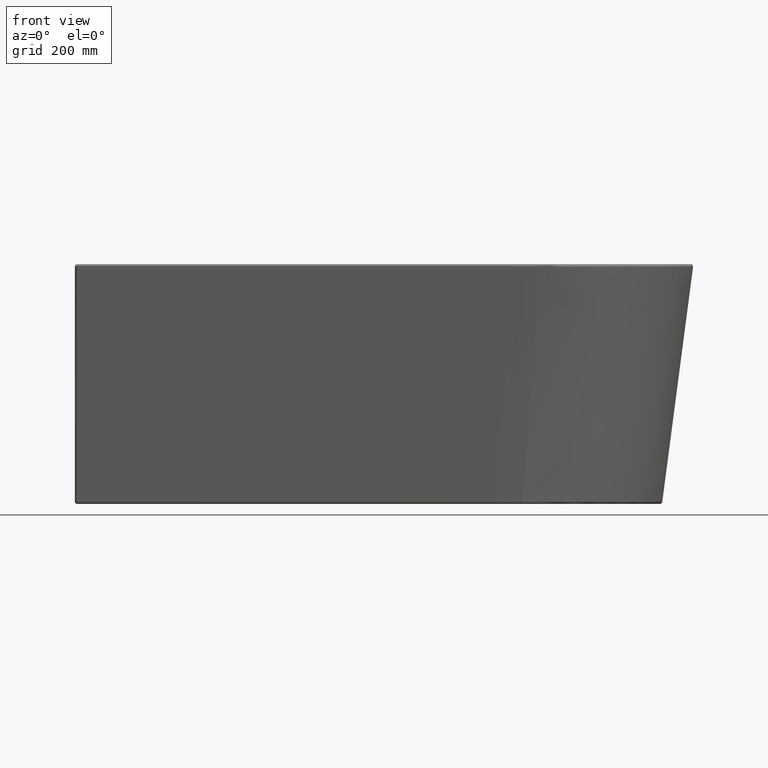
[diagram: clean part render]
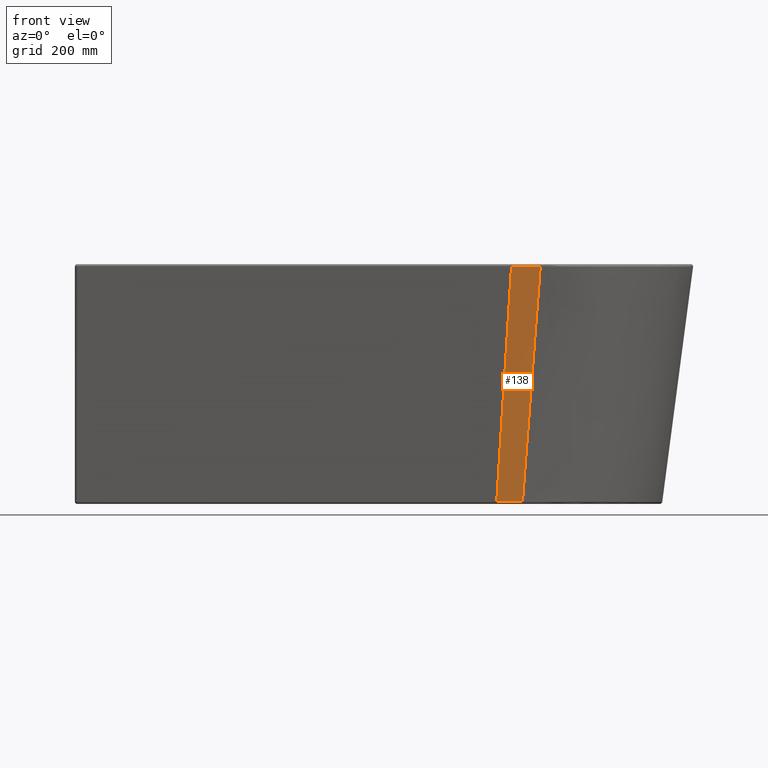
[diagram: same view with one face highlighted and labeled with its STEP entity id]
A machine part, front view. The second image highlights one B-rep face of the part: STEP entity #138.
In plain terms, the highlighted face is a freeform B-spline surface patch.
Its self-contained STEP definition (entity closure, byte-faithful):
#138=ADVANCED_FACE('',(#237),#2846,.T.);
#237=FACE_OUTER_BOUND('',#336,.T.);
#336=EDGE_LOOP('',(#677,#678,#679,#680));
#677=ORIENTED_EDGE('',*,*,#2498,.F.);
#678=ORIENTED_EDGE('',*,*,#2502,.T.);
#679=ORIENTED_EDGE('',*,*,#2488,.F.);
#680=ORIENTED_EDGE('',*,*,#2503,.T.);
#1144=B_SPLINE_CURVE_WITH_KNOTS('',1,(#8846,#8847),.UNSPECIFIED.,.F.,.F.,
(2,2),(6.38976498192872,588.739004689868),.UNSPECIFIED.);
#1154=B_SPLINE_CURVE_WITH_KNOTS('',1,(#8915,#8916),.UNSPECIFIED.,.F.,.F.,
(2,2),(-588.376841681359,-6.01270009495284),.UNSPECIFIED.);
#1158=B_SPLINE_CURVE_WITH_KNOTS('',1,(#8935,#8936),.UNSPECIFIED.,.F.,.F.,
(2,2),(-588.376841681359,-6.01270009495284),.UNSPECIFIED.);
#1159=B_SPLINE_CURVE_WITH_KNOTS('',3,(#8941,#8942,#8943,#8944),
 .UNSPECIFIED.,.F.,.F.,(4,4),(-61.1134140227743,0.340165854172579),
 .UNSPECIFIED.);
#1160=B_SPLINE_CURVE_WITH_KNOTS('',1,(#8945,#8946),.UNSPECIFIED.,.F.,.F.,
(2,2),(6.38976498192872,588.739004689868),.UNSPECIFIED.);
#1161=B_SPLINE_CURVE_WITH_KNOTS('',3,(#8951,#8952,#8953,#8954),
 .UNSPECIFIED.,.F.,.F.,(4,4),(-69.1122228830787,0.368828350929946),
 .UNSPECIFIED.);
#1219=B_SPLINE_CURVE_WITH_KNOTS('',1,(#9192,#9193),.UNSPECIFIED.,.F.,.F.,
(2,2),(-61.1134140227743,0.340165854172579),.UNSPECIFIED.);
#1223=B_SPLINE_CURVE_WITH_KNOTS('',1,(#9203,#9204),.UNSPECIFIED.,.F.,.F.,
(2,2),(-69.1122228830787,0.368828350929946),.UNSPECIFIED.);
#1572=PCURVE('',#2842,#1991);
#1582=PCURVE('',#2845,#2001);
#1586=PCURVE('',#2846,#2005);
#1587=PCURVE('',#2846,#2006);
#1588=PCURVE('',#2846,#2007);
#1589=PCURVE('',#2846,#2008);
#1638=PCURVE('',#2859,#2057);
#1642=PCURVE('',#2860,#2061);
#1991=DEFINITIONAL_REPRESENTATION('',(#1144),#9406);
#2001=DEFINITIONAL_REPRESENTATION('',(#1154),#9406);
#2005=DEFINITIONAL_REPRESENTATION('',(#1158),#9406);
#2006=DEFINITIONAL_REPRESENTATION('',(#1159),#9406);
#2007=DEFINITIONAL_REPRESENTATION('',(#1160),#9406);
#2008=DEFINITIONAL_REPRESENTATION('',(#1161),#9406);
#2057=DEFINITIONAL_REPRESENTATION('',(#1219),#9406);
#2061=DEFINITIONAL_REPRESENTATION('',(#1223),#9406);
#2277=SURFACE_CURVE('',#2643,(#1572,#1588),.PCURVE_S1.);
#2287=SURFACE_CURVE('',#2653,(#1582,#1586),.PCURVE_S1.);
#2291=SURFACE_CURVE('',#2657,(#1587,#1638),.PCURVE_S1.);
#2292=SURFACE_CURVE('',#2658,(#1589,#1642),.PCURVE_S1.);
#2488=EDGE_CURVE('',#2776,#2775,#2277,.T.);
#2498=EDGE_CURVE('',#2788,#2791,#2287,.T.);
#2502=EDGE_CURVE('',#2788,#2775,#2291,.T.);
#2503=EDGE_CURVE('',#2776,#2791,#2292,.T.);
#2643=(
BOUNDED_CURVE()
B_SPLINE_CURVE(3,(#8842,#8843,#8844,#8845),.UNSPECIFIED.,.F.,.F.)
B_SPLINE_CURVE_WITH_KNOTS((4,4),(6.38976498192872,588.739004689868),
 .UNSPECIFIED.)
CURVE()
GEOMETRIC_REPRESENTATION_ITEM()
RATIONAL_B_SPLINE_CURVE((1.,1.00035163946018,1.00035607690944,1.))
REPRESENTATION_ITEM('')
);
#2653=(
BOUNDED_CURVE()
B_SPLINE_CURVE(3,(#8911,#8912,#8913,#8914),.UNSPECIFIED.,.F.,.F.)
B_SPLINE_CURVE_WITH_KNOTS((4,4),(-588.376841681359,-6.01270009495284),
 .UNSPECIFIED.)
CURVE()
GEOMETRIC_REPRESENTATION_ITEM()
RATIONAL_B_SPLINE_CURVE((1.,1.,1.,1.))
REPRESENTATION_ITEM('')
);
#2657=(
BOUNDED_CURVE()
B_SPLINE_CURVE(3,(#8937,#8938,#8939,#8940),.UNSPECIFIED.,.F.,.F.)
B_SPLINE_CURVE_WITH_KNOTS((4,4),(-61.1134140227743,0.340165854172579),
 .UNSPECIFIED.)
CURVE()
GEOMETRIC_REPRESENTATION_ITEM()
RATIONAL_B_SPLINE_CURVE((1.,1.,1.,1.))
REPRESENTATION_ITEM('')
);
#2658=(
BOUNDED_CURVE()
B_SPLINE_CURVE(3,(#8947,#8948,#8949,#8950),.UNSPECIFIED.,.F.,.F.)
B_SPLINE_CURVE_WITH_KNOTS((4,4),(-69.1122228830787,0.368828350929946),
 .UNSPECIFIED.)
CURVE()
GEOMETRIC_REPRESENTATION_ITEM()
RATIONAL_B_SPLINE_CURVE((1.,1.,1.,1.))
REPRESENTATION_ITEM('')
);
#2775=VERTEX_POINT('',#6287);
#2776=VERTEX_POINT('',#6288);
#2788=VERTEX_POINT('',#6300);
#2791=VERTEX_POINT('',#6303);
#2842=(
BOUNDED_SURFACE()
B_SPLINE_SURFACE(3,2,((#5142,#5143,#5144),(#5145,#5146,#5147),(#5148,#5149,
#5150),(#5151,#5152,#5153)),.UNSPECIFIED.,.F.,.F.,.F.)
B_SPLINE_SURFACE_WITH_KNOTS((4,4),(3,3),(0.,593.941109113743),(3746.00915287992,
4327.20851813218),.UNSPECIFIED.)
GEOMETRIC_REPRESENTATION_ITEM()
RATIONAL_B_SPLINE_SURFACE(((1.,0.707106781186547,1.),(0.981357775966269,
0.717543593945994,1.),(0.962715551932538,0.727980406705441,1.),(0.944073327898807,
0.738417219464888,1.)))
REPRESENTATION_ITEM('')
SURFACE()
);
#2845=(
BOUNDED_SURFACE()
B_SPLINE_SURFACE(3,2,((#5178,#5179,#5180),(#5181,#5182,#5183),(#5184,#5185,
#5186),(#5187,#5188,#5189)),.UNSPECIFIED.,.F.,.F.,.F.)
B_SPLINE_SURFACE_WITH_KNOTS((4,4),(3,3),(0.,593.941109113743),(2620.,3676.44185637854),
 .UNSPECIFIED.)
GEOMETRIC_REPRESENTATION_ITEM()
RATIONAL_B_SPLINE_SURFACE(((1.,1.,1.),(1.,1.,1.),(1.,1.,1.),(1.,1.,1.)))
REPRESENTATION_ITEM('')
SURFACE()
);
#2846=(
BOUNDED_SURFACE()
B_SPLINE_SURFACE(3,2,((#5190,#5191,#5192),(#5193,#5194,#5195),(#5196,#5197,
#5198),(#5199,#5200,#5201)),.UNSPECIFIED.,.F.,.F.,.F.)
B_SPLINE_SURFACE_WITH_KNOTS((4,4),(3,3),(0.,593.941109113743),(3676.44185637854,
3746.00915287992),.UNSPECIFIED.)
GEOMETRIC_REPRESENTATION_ITEM()
RATIONAL_B_SPLINE_SURFACE(((1.,1.,1.),(1.,0.989563187240553,0.981357775966269),
(1.,0.979126374481106,0.962715551932538),(1.,0.968689561721659,0.944073327898807)))
REPRESENTATION_ITEM('')
SURFACE()
);
#2859=(
BOUNDED_SURFACE()
B_SPLINE_SURFACE(3,2,((#5301,#5302,#5303),(#5304,#5305,#5306),(#5307,#5308,
#5309),(#5310,#5311,#5312)),.UNSPECIFIED.,.F.,.F.,.F.)
B_SPLINE_SURFACE_WITH_KNOTS((4,4),(3,3),(-0.340165854172582,61.1134140227743),
(0.,8.79733528306224),.UNSPECIFIED.)
GEOMETRIC_REPRESENTATION_ITEM()
RATIONAL_B_SPLINE_SURFACE(((1.,0.740305944048158,1.),(1.,0.737239826580676,
1.),(1.,0.735034034866845,1.),(1.,0.733946093451276,1.)))
REPRESENTATION_ITEM('')
SURFACE()
);
#2860=(
BOUNDED_SURFACE()
B_SPLINE_SURFACE(3,2,((#5313,#5314,#5315),(#5316,#5317,#5318),(#5319,#5320,
#5321),(#5322,#5323,#5324)),.UNSPECIFIED.,.F.,.F.,.F.)
B_SPLINE_SURFACE_WITH_KNOTS((4,4),(3,3),(-0.368828350929946,69.1122228830787),
(0.,9.01112500625893),.UNSPECIFIED.)
GEOMETRIC_REPRESENTATION_ITEM()
RATIONAL_B_SPLINE_SURFACE(((1.,0.67920772367945,1.),(1.,0.679198063334345,
1.),(1.,0.678223465132221,1.),(1.,0.676118511396634,1.)))
REPRESENTATION_ITEM('')
SURFACE()
);
#5142=CARTESIAN_POINT('',(352.6080292697,-1518.07099180049,0.));
#5143=CARTESIAN_POINT('',(722.6080292697,-1518.07099180049,0.));
#5144=CARTESIAN_POINT('',(722.6080292697,-1148.07099180049,0.));
#5145=CARTESIAN_POINT('',(338.514252622973,-1502.08824162991,-185.988074750878));
#5146=CARTESIAN_POINT('',(696.537739300412,-1482.77047267638,-198.957476081409));
#5147=CARTESIAN_POINT('',(697.274695936366,-1123.07099180049,-193.333333333333));
#5148=CARTESIAN_POINT('',(323.874646335909,-1485.48650486716,-379.179172970417));
#5149=CARTESIAN_POINT('',(671.214971469049,-1448.48213713583,-392.210177952338));
#5150=CARTESIAN_POINT('',(671.941362603033,-1098.07099180049,-386.666666666667));
#5151=CARTESIAN_POINT('',(308.656875594656,-1468.22911289854,-580.));
#5152=CARTESIAN_POINT('',(646.6080292697,-1415.16306647274,-580.));
#5153=CARTESIAN_POINT('',(646.6080292697,-1073.07099180049,-580.));
#5178=CARTESIAN_POINT('',(-773.3919707303,-1518.07099180049,0.));
#5179=CARTESIAN_POINT('',(-245.175336238569,-1518.07099180049,0.));
#5180=CARTESIAN_POINT('',(283.041298253163,-1518.07099180049,0.));
#5181=CARTESIAN_POINT('',(-773.3919707303,-1503.07099180049,-193.333333333333));
#5182=CARTESIAN_POINT('',(-251.247547735813,-1503.07099180049,-193.333333333333));
#5183=CARTESIAN_POINT('',(270.896875258675,-1503.07099180049,-193.333333333333));
#5184=CARTESIAN_POINT('',(-773.3919707303,-1488.07099180049,-386.666666666667));
#5185=CARTESIAN_POINT('',(-257.319759233056,-1488.07099180049,-386.666666666667));
#5186=CARTESIAN_POINT('',(258.752452264187,-1488.07099180049,-386.666666666667));
#5187=CARTESIAN_POINT('',(-773.3919707303,-1473.07099180049,-580.));
#5188=CARTESIAN_POINT('',(-263.3919707303,-1473.07099180049,-580.));
#5189=CARTESIAN_POINT('',(246.6080292697,-1473.07099180049,-580.));
#5190=CARTESIAN_POINT('',(283.041298253163,-1518.07099180049,0.));
#5191=CARTESIAN_POINT('',(317.824663761431,-1518.07099180049,0.));
#5192=CARTESIAN_POINT('',(352.6080292697,-1518.07099180049,0.));
#5193=CARTESIAN_POINT('',(270.896875258675,-1503.07099180049,-193.333333333333));
#5194=CARTESIAN_POINT('',(304.771504866485,-1503.38739846034,-189.255203050847));
#5195=CARTESIAN_POINT('',(338.514252622973,-1502.08824162991,-185.988074750878));
#5196=CARTESIAN_POINT('',(258.752452264187,-1488.07099180049,-386.666666666667));
#5197=CARTESIAN_POINT('',(291.440070605138,-1488.3907711374,-382.545066324261));
#5198=CARTESIAN_POINT('',(323.874646335909,-1485.48650486716,-379.179172970417));
#5199=CARTESIAN_POINT('',(246.6080292697,-1473.07099180049,-580.));
#5200=CARTESIAN_POINT('',(277.821366430501,-1473.07099180049,-580.));
#5201=CARTESIAN_POINT('',(308.656875594656,-1468.22911289854,-580.));
#5301=CARTESIAN_POINT('',(309.064420015777,-1468.69128005427,-574.621853023526));
#5302=CARTESIAN_POINT('',(308.984626928731,-1468.17814976122,-580.000003305893));
#5303=CARTESIAN_POINT('',(308.154399072671,-1462.83915251177,-580.));
#5304=CARTESIAN_POINT('',(288.522217084899,-1471.88733448297,-574.59483296139));
#5305=CARTESIAN_POINT('',(288.388993943306,-1471.42875457789,-580.000000000103));
#5306=CARTESIAN_POINT('',(287.917594421957,-1466.01258907233,-580.));
#5307=CARTESIAN_POINT('',(267.735292526496,-1473.49249625862,-574.575749246664));
#5308=CARTESIAN_POINT('',(267.68118267598,-1473.05290225441,-580.000000000096));
#5309=CARTESIAN_POINT('',(267.433903391253,-1467.6122331887,-580.));
#5310=CARTESIAN_POINT('',(246.949350065459,-1473.4925690083,-574.566338210548));
#5311=CARTESIAN_POINT('',(246.949350065459,-1473.07099180051,-579.999999999985));
#5312=CARTESIAN_POINT('',(246.949350065459,-1467.62100026069,-580.));
#5313=CARTESIAN_POINT('',(282.672469902237,-1517.61543905283,-5.87156874762048));
#5314=CARTESIAN_POINT('',(282.672469902237,-1518.07099180049,-3.09590473625479E-13));
#5315=CARTESIAN_POINT('',(282.672469902237,-1512.1817772634,0.));
#5316=CARTESIAN_POINT('',(305.835232618032,-1517.6154323343,-5.8716327702619));
#5317=CARTESIAN_POINT('',(305.834562328168,-1518.07115576069,-2.8822657453273E-13));
#5318=CARTESIAN_POINT('',(305.832820218904,-1512.18184782522,0.));
#5319=CARTESIAN_POINT('',(328.998225554239,-1517.59944793391,-5.87888218044223));
#5320=CARTESIAN_POINT('',(329.06932032404,-1518.07137538689,-5.29443153152995E-13));
#5321=CARTESIAN_POINT('',(328.993171081307,-1512.17366182764,0.));
#5322=CARTESIAN_POINT('',(352.161367390667,-1517.56446431661,-5.89435926424696));
#5323=CARTESIAN_POINT('',(352.162144675718,-1518.07166886684,-5.72728114387357E-06));
#5324=CARTESIAN_POINT('',(352.153078305056,-1512.15554021203,0.));
#6287=CARTESIAN_POINT('',(309.064420015777,-1468.69128005427,-574.621853023526));
#6288=CARTESIAN_POINT('',(352.161367390667,-1517.56446431661,-5.89435926424697));
#6300=CARTESIAN_POINT('',(246.94935006556,-1473.49256900839,-574.566338209339));
#6303=CARTESIAN_POINT('',(282.672469902157,-1517.61543905275,-5.87156874867082));
#8842=CARTESIAN_POINT('',(352.161367390667,-1517.56446431661,-5.89435926424697));
#8843=CARTESIAN_POINT('',(338.330985917043,-1501.88041188711,-188.406548000189));
#8844=CARTESIAN_POINT('',(323.975498203189,-1485.6008738003,-377.84828451513));
#8845=CARTESIAN_POINT('',(309.064420015777,-1468.69128005427,-574.621853023526));
#8846=CARTESIAN_POINT('',(6.38976498192872,3746.00915287992));
#8847=CARTESIAN_POINT('',(588.739004689869,3746.00915287992));
#8911=CARTESIAN_POINT('',(246.94935006556,-1473.49256900839,-574.566338209339));
#8912=CARTESIAN_POINT('',(258.857056677759,-1488.20019235651,-385.001415055783));
#8913=CARTESIAN_POINT('',(270.764763289958,-1502.90781570463,-195.436491902227));
#8914=CARTESIAN_POINT('',(282.672469902157,-1517.61543905275,-5.87156874867082));
#8915=CARTESIAN_POINT('',(588.376841681359,3676.44185637854));
#8916=CARTESIAN_POINT('',(6.01270009495291,3676.44185637854));
#8935=CARTESIAN_POINT('',(588.376841682227,3676.44185637854));
#8936=CARTESIAN_POINT('',(6.01270009419996,3676.44185637854));
#8937=CARTESIAN_POINT('',(246.94935006556,-1473.49256900839,-574.566338209339));
#8938=CARTESIAN_POINT('',(267.735292526563,-1473.49249625868,-574.575749245857));
#8939=CARTESIAN_POINT('',(288.522217084933,-1471.887334483,-574.594832960988));
#8940=CARTESIAN_POINT('',(309.064420015777,-1468.69128005427,-574.621853023526));
#8941=CARTESIAN_POINT('',(588.376841682227,3676.44185637854));
#8942=CARTESIAN_POINT('',(588.501259068264,3699.63093573623));
#8943=CARTESIAN_POINT('',(588.622496798334,3722.82003230824));
#8944=CARTESIAN_POINT('',(588.739004689869,3746.00915287992));
#8945=CARTESIAN_POINT('',(6.38976498192871,3746.00915287992));
#8946=CARTESIAN_POINT('',(588.739004689869,3746.00915287992));
#8947=CARTESIAN_POINT('',(352.161367390667,-1517.56446431661,-5.89435926424697));
#8948=CARTESIAN_POINT('',(328.998225554212,-1517.59944793388,-5.87888218079235));
#8949=CARTESIAN_POINT('',(305.835232617978,-1517.61543233425,-5.87163277096213));
#8950=CARTESIAN_POINT('',(282.672469902157,-1517.61543905275,-5.87156874867082));
#8951=CARTESIAN_POINT('',(6.38976498192871,3746.00915287992));
#8952=CARTESIAN_POINT('',(6.26310986662803,3722.82006021174));
#8953=CARTESIAN_POINT('',(6.13699474327702,3699.63097149062));
#8954=CARTESIAN_POINT('',(6.01270009419996,3676.44185637854));
#9192=CARTESIAN_POINT('',(61.1134140227743,0.));
#9193=CARTESIAN_POINT('',(-0.340165854172586,0.));
#9203=CARTESIAN_POINT('',(69.1122228830787,0.));
#9204=CARTESIAN_POINT('',(-0.368828350929938,0.));
#9406=(
GEOMETRIC_REPRESENTATION_CONTEXT(2)
PARAMETRIC_REPRESENTATION_CONTEXT()
REPRESENTATION_CONTEXT('pspace','')
);